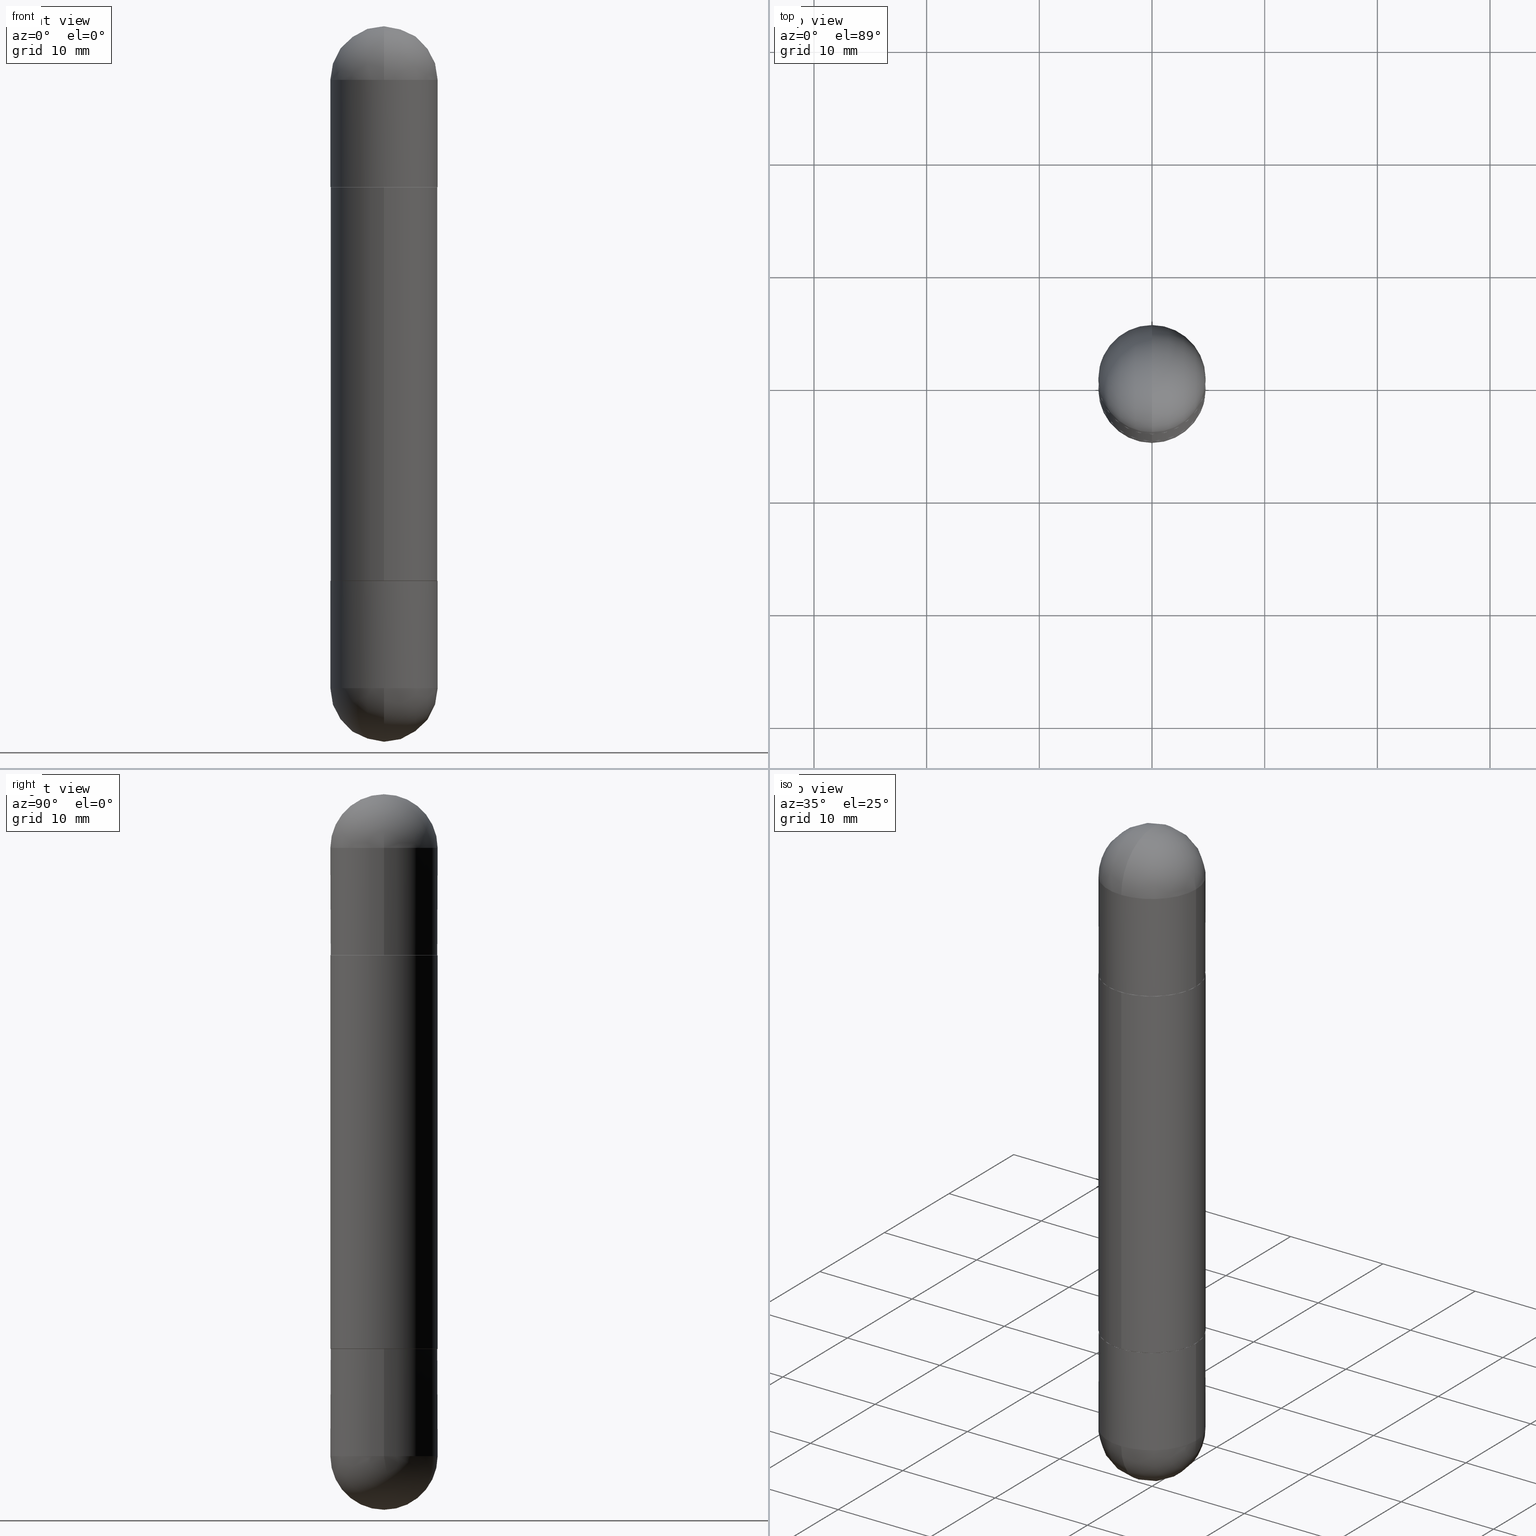
[diagram: canonical four-view strip — front | top / right | iso, engineering-drawing reading convention]
A machine part, canonical four-view strip (front | top / right | iso — engineering-drawing reading convention). The complete STEP part file that produces these views, byte-faithful:
ISO-10303-21;
HEADER;
FILE_DESCRIPTION (( 'STEP AP203' ),
    '1' );
FILE_NAME ('31576.STEP',
    '2024-03-01T12:43:05',
    ( '' ),
    ( '' ),
    'SwSTEP 2.0',
    'SolidWorks 2023',
    '' );
FILE_SCHEMA (( 'CONFIG_CONTROL_DESIGN' ));
ENDSEC;

DATA;
#1 = AXIS2_PLACEMENT_3D ( 'NONE', #22, #405, #390 ) ;
#2 = PERSON_AND_ORGANIZATION_ROLE ( 'classification_officer' ) ;
#3 = EDGE_CURVE ( 'NONE', #8, #341, #540, .T. ) ;
#4 = VERTEX_POINT ( 'NONE', #718 ) ;
#5 = PRODUCT_DEFINITION_FORMATION_WITH_SPECIFIED_SOURCE ( 'ANY', '', #185, .NOT_KNOWN. ) ;
#6 = CC_DESIGN_PERSON_AND_ORGANIZATION_ASSIGNMENT ( #668, #2, ( #112 ) ) ;
#7 = ADVANCED_FACE ( 'NONE', ( #776 ), #198, .T. ) ;
#8 = VERTEX_POINT ( 'NONE', #595 ) ;
#9 = EDGE_CURVE ( 'NONE', #522, #232, #355, .T. ) ;
#10 = CARTESIAN_POINT ( 'NONE',  ( 0.000000000000000000, 0.000000000000000000, 0.000000000000000000 ) ) ;
#11 = CARTESIAN_POINT ( 'NONE',  ( 4.738763353885146928E-29, -6.767285901939970201E-15, -1.937999999999999945 ) ) ;
#12 = CIRCLE ( 'NONE', #1, 0.1864999999999999714 ) ;
#13 = FACE_OUTER_BOUND ( 'NONE', #432, .T. ) ;
#14 = ORIENTED_EDGE ( 'NONE', *, *, #569, .T. ) ;
#15 = CARTESIAN_POINT ( 'NONE',  ( 1.286343374582210880E-15, 0.1874999999999935052, -0.5630000000000001670 ) ) ;
#16 = CARTESIAN_POINT ( 'NONE',  ( 5.324026836389243254E-29, -8.548232964214825368E-15, -0.1875000000000006661 ) ) ;
#17 = DIRECTION ( 'NONE',  ( 2.445468806185136597E-29, -3.491481338843145583E-15, 1.000000000000000000 ) ) ;
#18 = CARTESIAN_POINT ( 'NONE',  ( 4.738763353885146928E-29, -6.767285901939970201E-15, -1.937999999999999945 ) ) ;
#19 = CARTESIAN_POINT ( 'NONE',  ( 5.324026836389243254E-29, -8.548232964214825368E-15, -0.1875000000000006661 ) ) ;
#20 = DIRECTION ( 'NONE',  ( -2.445182329146102115E-29, 3.491891590268302774E-15, 1.000000000000000000 ) ) ;
#21 = DIRECTION ( 'NONE',  ( -2.445182329146102675E-29, 3.491891590268302774E-15, -1.000000000000000000 ) ) ;
#22 = CARTESIAN_POINT ( 'NONE',  ( 4.738763353885146928E-29, -6.767285901939970201E-15, -0.5620000000000007212 ) ) ;
#23 = CLOSED_SHELL ( 'NONE', ( #748, #320, #34, #316, #7, #68 ) ) ;
#24 = ADVANCED_FACE ( 'NONE', ( #274 ), #27, .T. ) ;
#25 = CARTESIAN_POINT ( 'NONE',  ( 4.739318546386794397E-29, -6.766490834678016045E-15, -1.937999999999999945 ) ) ;
#26 = CIRCLE ( 'NONE', #306, 0.1875000000000002220 ) ;
#27 = CYLINDRICAL_SURFACE ( 'NONE', #611, 0.1875000000000001110 ) ;
#28 = LINE ( 'NONE', #280, #564 ) ;
#29 = APPROVAL ( #755, 'UNSPECIFIED' ) ;
#30 = DIRECTION ( 'NONE',  ( -2.445182329146102675E-29, 3.491891590268302774E-15, -1.000000000000000000 ) ) ;
#31 = EDGE_LOOP ( 'NONE', ( #771, #378 ) ) ;
#32 = CARTESIAN_POINT ( 'NONE',  ( 1.309305502066231017E-15, 0.1874999999999918954, -0.1875000000000000278 ) ) ;
#33 = DIRECTION ( 'NONE',  ( -2.445468806185136597E-29, 3.491481338843145583E-15, 1.000000000000000000 ) ) ;
#34 = ADVANCED_FACE ( 'NONE', ( #727 ), #778, .F. ) ;
#35 = FACE_OUTER_BOUND ( 'NONE', #325, .T. ) ;
#36 = VERTEX_POINT ( 'NONE', #15 ) ;
#37 = LINE ( 'NONE', #413, #288 ) ;
#38 = CARTESIAN_POINT ( 'NONE',  ( 3.056477911432629185E-29, -4.364864487835379552E-15, -1.250000000000000222 ) ) ;
#39 = DIRECTION ( 'NONE',  ( 1.000000000000000000, -6.982962677686265922E-15, 4.876176775795935793E-29 ) ) ;
#40 = CIRCLE ( 'NONE', #230, 0.1875000000000000555 ) ;
#41 = APPROVAL_STATUS ( 'not_yet_approved' ) ;
#42 = VERTEX_POINT ( 'NONE', #207 ) ;
#43 = CIRCLE ( 'NONE', #395, 0.1875000000000003331 ) ;
#44 = DIRECTION ( 'NONE',  ( -2.445468806185136877E-29, 3.491481338843145188E-15, 1.000000000000000000 ) ) ;
#45 = FACE_OUTER_BOUND ( 'NONE', #504, .T. ) ;
#46 = DIRECTION ( 'NONE',  ( 2.445468806185136597E-29, -3.491481338843145583E-15, 1.000000000000000000 ) ) ;
#47 = ORIENTED_EDGE ( 'NONE', *, *, #534, .T. ) ;
#48 = DIRECTION ( 'NONE',  ( 1.000000000000000000, -6.982962677686266711E-15, 0.000000000000000000 ) ) ;
#49 = DIRECTION ( 'NONE',  ( 1.000000000000000000, -6.982962677686266711E-15, 0.000000000000000000 ) ) ;
#50 = EDGE_CURVE ( 'NONE', #610, #195, #644, .T. ) ;
#51 = ORIENTED_EDGE ( 'NONE', *, *, #698, .T. ) ;
#52 = CARTESIAN_POINT ( 'NONE',  ( 0.1875000000000000555, -8.729576217442571356E-15, -0.1875000000000006661 ) ) ;
#53 = MANIFOLD_SOLID_BREP ( 'Mirror4[3]', #62 ) ;
#54 = ORIENTED_EDGE ( 'NONE', *, *, #404, .F. ) ;
#55 = COORDINATED_UNIVERSAL_TIME_OFFSET ( 5, 0, .BEHIND. ) ;
#56 = MANIFOLD_SOLID_BREP ( 'Mirror4[1]', #23 ) ;
#57 = ORIENTED_EDGE ( 'NONE', *, *, #445, .T. ) ;
#58 = CALENDAR_DATE ( 2024, 1, 3 ) ;
#59 = VERTEX_POINT ( 'NONE', #337 ) ;
#60 = EDGE_LOOP ( 'NONE', ( #551, #705, #173, #128 ) ) ;
#61 = ADVANCED_FACE ( 'NONE', ( #646 ), #407, .T. ) ;
#62 = CLOSED_SHELL ( 'NONE', ( #159, #806, #385, #440, #624 ) ) ;
#63 = AXIS2_PLACEMENT_3D ( 'NONE', #486, #419, #167 ) ;
#64 = CARTESIAN_POINT ( 'NONE',  ( 0.000000000000000000, 0.000000000000000000, -2.500000000000000444 ) ) ;
#65 = CIRCLE ( 'NONE', #662, 0.1875000000000000555 ) ;
#66 = ORIENTED_EDGE ( 'NONE', *, *, #471, .F. ) ;
#67 = ADVANCED_FACE ( 'NONE', ( #144 ), #254, .T. ) ;
#68 = ADVANCED_FACE ( 'NONE', ( #396 ), #282, .T. ) ;
#69 = VERTEX_POINT ( 'NONE', #80 ) ;
#70 = CARTESIAN_POINT ( 'NONE',  ( 5.655146614303128380E-29, -8.074050596074775072E-15, -0.1875000000000006661 ) ) ;
#71 =( NAMED_UNIT ( * ) SI_UNIT ( $, .STERADIAN. ) SOLID_ANGLE_UNIT ( ) );
#72 = CARTESIAN_POINT ( 'NONE',  ( 4.736318171556000237E-29, -6.763794010349701520E-15, -0.5630000000000008331 ) ) ;
#73 = EDGE_LOOP ( 'NONE', ( #756, #754 ) ) ;
#74 = DIRECTION ( 'NONE',  ( -2.445468806185136597E-29, 3.491481338843145583E-15, 1.000000000000000000 ) ) ;
#75 = AXIS2_PLACEMENT_3D ( 'NONE', #671, #805, #619 ) ;
#76 = FACE_OUTER_BOUND ( 'NONE', #737, .T. ) ;
#77 = AXIS2_PLACEMENT_3D ( 'NONE', #639, #702, #212 ) ;
#78 = SPHERICAL_SURFACE ( 'NONE', #679, 0.1875000000000003331 ) ;
#79 =( GEOMETRIC_REPRESENTATION_CONTEXT ( 3 ) GLOBAL_UNCERTAINTY_ASSIGNED_CONTEXT ( ( #228 ) ) GLOBAL_UNIT_ASSIGNED_CONTEXT ( ( #199, #257, #71 ) ) REPRESENTATION_CONTEXT ( 'NONE', 'WORKASPACE' ) );
#80 = CARTESIAN_POINT ( 'NONE',  ( 5.790569421510013204E-29, -9.191404651505909607E-15, -2.500000000000000000 ) ) ;
#81 = CARTESIAN_POINT ( 'NONE',  ( -1.286343374582108525E-15, -0.1875000000000084932, -0.1875000000000013045 ) ) ;
#82 = CYLINDRICAL_SURFACE ( 'NONE', #508, 0.1875000000000001110 ) ;
#83 = ORIENTED_EDGE ( 'NONE', *, *, #95, .F. ) ;
#84 = CARTESIAN_POINT ( 'NONE',  ( 4.736318171556000237E-29, -6.763794010349701520E-15, -0.5630000000000008331 ) ) ;
#85 = EDGE_CURVE ( 'NONE', #169, #265, #656, .T. ) ;
#86 = CARTESIAN_POINT ( 'NONE',  ( 0.000000000000000000, 0.000000000000000000, 0.000000000000000000 ) ) ;
#87 = DIRECTION ( 'NONE',  ( 2.445468806185136597E-29, -3.491481338843145583E-15, 1.000000000000000000 ) ) ;
#88 = ORIENTED_EDGE ( 'NONE', *, *, #583, .T. ) ;
#89 = CC_DESIGN_PERSON_AND_ORGANIZATION_ASSIGNMENT ( #703, #321, ( #185 ) ) ;
#90 = DIRECTION ( 'NONE',  ( -6.982962677686266711E-15, -1.000000000000000000, -2.913971193241879189E-15 ) ) ;
#91 = DIRECTION ( 'NONE',  ( -1.000000000000000000, 6.982962677686265922E-15, 4.883557194083112340E-29 ) ) ;
#92 = VECTOR ( 'NONE', #548, 39.37007874015748143 ) ;
#93 = PLANE ( 'NONE',  #461 ) ;
#94 = DIMENSIONAL_EXPONENTS ( 1.000000000000000000, 0.000000000000000000, 0.000000000000000000, 0.000000000000000000, 0.000000000000000000, 0.000000000000000000, 0.000000000000000000 ) ;
#95 = EDGE_CURVE ( 'NONE', #59, #817, #789, .T. ) ;
#96 = CC_DESIGN_APPROVAL ( #213, ( #5 ) ) ;
#97 = DIRECTION ( 'NONE',  ( -1.000000000000000000, 0.000000000000000000, 0.000000000000000000 ) ) ;
#98 = LINE ( 'NONE', #607, #627 ) ;
#99 = FACE_OUTER_BOUND ( 'NONE', #468, .T. ) ;
#100 = APPROVAL_ROLE ( '' ) ;
#101 = VERTEX_POINT ( 'NONE', #32 ) ;
#102 = DIRECTION ( 'NONE',  ( 2.445468806185136597E-29, -3.491481338843145583E-15, 1.000000000000000000 ) ) ;
#103 = DIRECTION ( 'NONE',  ( -1.000000000000000000, 6.982962677686265922E-15, -4.876176775795935793E-29 ) ) ;
#104 = CARTESIAN_POINT ( 'NONE',  ( 5.655146614303128380E-29, -8.074050596074775072E-15, -0.1875000000000006661 ) ) ;
#105 = ORIENTED_EDGE ( 'NONE', *, *, #336, .T. ) ;
#106 = CARTESIAN_POINT ( 'NONE',  ( 4.738763353885146928E-29, -6.767285901939970201E-15, -1.937999999999999945 ) ) ;
#107 = DIRECTION ( 'NONE',  ( -1.000000000000000000, 0.000000000000000000, 0.000000000000000000 ) ) ;
#108 = DIRECTION ( 'NONE',  ( 1.000000000000000000, -6.982962677686266711E-15, 0.000000000000000000 ) ) ;
#109 = AXIS2_PLACEMENT_3D ( 'NONE', #552, #165, #365 ) ;
#110 = ORIENTED_EDGE ( 'NONE', *, *, #363, .F. ) ;
#111 = AXIS2_PLACEMENT_3D ( 'NONE', #330, #580, #457 ) ;
#112 = SECURITY_CLASSIFICATION ( '', '', #604 ) ;
#113 = LINE ( 'NONE', #238, #563 ) ;
#114 = DIRECTION ( 'NONE',  ( -2.445182329146102955E-29, 3.491891590268302774E-15, -1.000000000000000000 ) ) ;
#115 = APPROVAL_PERSON_ORGANIZATION ( #368, #213, #100 ) ;
#116 = CARTESIAN_POINT ( 'NONE',  ( -1.302322539388441071E-15, -0.1865000000000067437, -0.5620000000000013873 ) ) ;
#117 = VERTEX_POINT ( 'NONE', #536 ) ;
#118 = DIRECTION ( 'NONE',  ( 1.000000000000000000, -6.982962677686265922E-15, 4.883557194083112340E-29 ) ) ;
#119 = EDGE_CURVE ( 'NONE', #816, #36, #792, .T. ) ;
#120 = ORIENTED_EDGE ( 'NONE', *, *, #769, .T. ) ;
#121 = CALENDAR_DATE ( 2024, 1, 3 ) ;
#122 = EDGE_LOOP ( 'NONE', ( #258, #456, #139, #572, #491 ) ) ;
#123 = VECTOR ( 'NONE', #713, 39.37007874015748143 ) ;
#124 = CIRCLE ( 'NONE', #735, 0.1875000000000002220 ) ;
#125 = PERSON_AND_ORGANIZATION ( #815, #813 ) ;
#126 = EDGE_LOOP ( 'NONE', ( #269, #682 ) ) ;
#127 = EDGE_CURVE ( 'NONE', #496, #101, #497, .T. ) ;
#128 = ORIENTED_EDGE ( 'NONE', *, *, #442, .T. ) ;
#129 = APPROVAL_STATUS ( 'not_yet_approved' ) ;
#130 = EDGE_LOOP ( 'NONE', ( #319, #689, #547, #302 ) ) ;
#131 = EDGE_CURVE ( 'NONE', #265, #693, #690, .T. ) ;
#132 = VECTOR ( 'NONE', #600, 39.37007874015748143 ) ;
#133 = CLOSED_SHELL ( 'NONE', ( #810, #683, #376, #149, #241 ) ) ;
#134 = ORIENTED_EDGE ( 'NONE', *, *, #569, .F. ) ;
#135 = CARTESIAN_POINT ( 'NONE',  ( -1.302322539388441071E-15, -0.1865000000000067437, -1.937999999999999279 ) ) ;
#136 = DIRECTION ( 'NONE',  ( 1.000000000000000000, -6.982962677686265922E-15, 0.000000000000000000 ) ) ;
#137 = DIRECTION ( 'NONE',  ( 1.000000000000000000, -6.860497997771530774E-15, -4.840798879624142912E-29 ) ) ;
#138 = ORIENTED_EDGE ( 'NONE', *, *, #428, .T. ) ;
#139 = ORIENTED_EDGE ( 'NONE', *, *, #583, .F. ) ;
#140 = CARTESIAN_POINT ( 'NONE',  ( -0.1875000000000000555, 1.286343374582162562E-15, -2.500000000000000444 ) ) ;
#141 = DIRECTION ( 'NONE',  ( -2.445468806185136597E-29, 3.491481338843145583E-15, -1.000000000000000000 ) ) ;
#142 = DIRECTION ( 'NONE',  ( -2.445182329146102115E-29, 3.491891590268302774E-15, -1.000000000000000000 ) ) ;
#143 = VERTEX_POINT ( 'NONE', #606 ) ;
#144 = FACE_OUTER_BOUND ( 'NONE', #797, .T. ) ;
#145 = AXIS2_PLACEMENT_3D ( 'NONE', #589, #21, #90 ) ;
#146 = CARTESIAN_POINT ( 'NONE',  ( 4.736318171556000237E-29, -6.763794010349701520E-15, -0.5630000000000008331 ) ) ;
#147 = AXIS2_PLACEMENT_3D ( 'NONE', #146, #777, #208 ) ;
#148 = DIRECTION ( 'NONE',  ( 1.000000000000000000, -6.982962677686266711E-15, 0.000000000000000000 ) ) ;
#149 = ADVANCED_FACE ( 'NONE', ( #623 ), #234, .F. ) ;
#150 = DIRECTION ( 'NONE',  ( -2.445182329146102675E-29, 3.491891590268302774E-15, 1.000000000000000000 ) ) ;
#151 = FACE_OUTER_BOUND ( 'NONE', #358, .T. ) ;
#152 = CC_DESIGN_DATE_AND_TIME_ASSIGNMENT ( #562, #695, ( #298 ) ) ;
#153 = DIRECTION ( 'NONE',  ( 2.445182329146102675E-29, -3.491891590268302774E-15, 1.000000000000000000 ) ) ;
#154 = APPLICATION_CONTEXT ( 'configuration controlled 3d designs of mechanical parts and assemblies' ) ;
#155 = DIRECTION ( 'NONE',  ( -2.445182329146102675E-29, 3.491891590268302774E-15, -1.000000000000000000 ) ) ;
#156 = DIRECTION ( 'NONE',  ( 2.445468806185136597E-29, -3.491481338843145583E-15, 1.000000000000000000 ) ) ;
#157 = DIRECTION ( 'NONE',  ( 6.982962677686266711E-15, 1.000000000000000000, 3.460340791974727494E-15 ) ) ;
#158 = EDGE_CURVE ( 'NONE', #513, #559, #37, .T. ) ;
#159 = ADVANCED_FACE ( 'NONE', ( #742 ), #809, .T. ) ;
#160 = DIRECTION ( 'NONE',  ( 2.445182329146102675E-29, -3.491891590268302774E-15, 1.000000000000000000 ) ) ;
#161 = DIRECTION ( 'NONE',  ( 2.445468806185136597E-29, -3.491481338843145583E-15, 1.000000000000000000 ) ) ;
#162 = CIRCLE ( 'NONE', #523, 0.1875000000000000555 ) ;
#163 = ORIENTED_EDGE ( 'NONE', *, *, #527, .T. ) ;
#164 = CIRCLE ( 'NONE', #717, 0.1875000000000002220 ) ;
#165 = DIRECTION ( 'NONE',  ( 2.438088387897960049E-29, -3.491481338843145188E-15, 1.000000000000000000 ) ) ;
#166 = FACE_OUTER_BOUND ( 'NONE', #206, .T. ) ;
#167 = DIRECTION ( 'NONE',  ( 6.982962677686266711E-15, 1.000000000000000000, -2.913971193241875639E-15 ) ) ;
#168 = APPROVAL_ROLE ( '' ) ;
#169 = VERTEX_POINT ( 'NONE', #52 ) ;
#170 = DIRECTION ( 'NONE',  ( -2.445468806185136597E-29, 3.491481338843145583E-15, 1.000000000000000000 ) ) ;
#171 = FACE_OUTER_BOUND ( 'NONE', #188, .T. ) ;
#172 = CARTESIAN_POINT ( 'NONE',  ( 5.655146614303128380E-29, -8.074050596074775072E-15, -0.1875000000000006661 ) ) ;
#173 = ORIENTED_EDGE ( 'NONE', *, *, #780, .T. ) ;
#174 = CARTESIAN_POINT ( 'NONE',  ( 5.324026836389243254E-29, -8.548232964214825368E-15, -2.312500000000000000 ) ) ;
#175 = CARTESIAN_POINT ( 'NONE',  ( 0.1875000000000000278, -8.075796336744191053E-15, -0.5620000000000007212 ) ) ;
#176 = CARTESIAN_POINT ( 'NONE',  ( 4.739318546386794397E-29, -6.766490834678016045E-15, -0.5620000000000007212 ) ) ;
#177 = AXIS2_PLACEMENT_3D ( 'NONE', #612, #489, #293 ) ;
#178 = ORIENTED_EDGE ( 'NONE', *, *, #196, .T. ) ;
#179 = AXIS2_PLACEMENT_3D ( 'NONE', #263, #509, #271 ) ;
#180 = EDGE_CURVE ( 'NONE', #499, #8, #795, .T. ) ;
#181 = AXIS2_PLACEMENT_3D ( 'NONE', #225, #794, #680 ) ;
#182 = DIRECTION ( 'NONE',  ( -2.445468806185136597E-29, 3.491481338843145583E-15, -1.000000000000000000 ) ) ;
#183 = ORIENTED_EDGE ( 'NONE', *, *, #502, .T. ) ;
#184 = ORIENTED_EDGE ( 'NONE', *, *, #520, .T. ) ;
#185 = PRODUCT ( '31576', '31576', '', ( #450 ) ) ;
#186 = EDGE_CURVE ( 'NONE', #143, #631, #113, .T. ) ;
#187 = EDGE_LOOP ( 'NONE', ( #333, #731, #436, #88 ) ) ;
#188 = EDGE_LOOP ( 'NONE', ( #741, #517 ) ) ;
#189 = CIRCLE ( 'NONE', #434, 0.1875000000000000555 ) ;
#190 = AXIS2_PLACEMENT_3D ( 'NONE', #16, #779, #397 ) ;
#191 = AXIS2_PLACEMENT_3D ( 'NONE', #351, #608, #39 ) ;
#192 = COORDINATED_UNIVERSAL_TIME_OFFSET ( 5, 0, .BEHIND. ) ;
#193 = EDGE_LOOP ( 'NONE', ( #273, #251, #808, #256, #625 ) ) ;
#194 = CARTESIAN_POINT ( 'NONE',  ( 5.324026836389243254E-29, -8.548232964214825368E-15, -0.1875000000000006661 ) ) ;
#195 = VERTEX_POINT ( 'NONE', #429 ) ;
#196 = EDGE_CURVE ( 'NONE', #232, #412, #670, .T. ) ;
#197 = ORIENTED_EDGE ( 'NONE', *, *, #487, .F. ) ;
#198 = CONICAL_SURFACE ( 'NONE', #818, 0.1864999999999999714, 0.7853981633975336552 ) ;
#199 =( CONVERSION_BASED_UNIT ( 'INCH', #260 ) LENGTH_UNIT ( ) NAMED_UNIT ( #94 ) );
#200 = AXIS2_PLACEMENT_3D ( 'NONE', #104, #46, #357 ) ;
#201 = LINE ( 'NONE', #787, #558 ) ;
#202 = ORIENTED_EDGE ( 'NONE', *, *, #276, .T. ) ;
#203 = LINE ( 'NONE', #140, #123 ) ;
#204 = DIRECTION ( 'NONE',  ( 1.000000000000000000, -6.982962677686266711E-15, -4.883557194083113462E-29 ) ) ;
#205 = CARTESIAN_POINT ( 'NONE',  ( 5.655146614303128380E-29, -8.074050596074775072E-15, -0.1875000000000006661 ) ) ;
#206 = EDGE_LOOP ( 'NONE', ( #554, #707, #57, #14 ) ) ;
#207 = CARTESIAN_POINT ( 'NONE',  ( -1.309305502066136946E-15, -0.1875000000000044964, -1.250000000000000222 ) ) ;
#208 = DIRECTION ( 'NONE',  ( -6.982962677686265922E-15, -1.000000000000000000, -3.642463991552347014E-15 ) ) ;
#209 = CARTESIAN_POINT ( 'NONE',  ( 4.736318171556000237E-29, -6.763794010349701520E-15, -1.936999999999999833 ) ) ;
#210 = CARTESIAN_POINT ( 'NONE',  ( 5.655146614303128380E-29, -8.074050596074775072E-15, -2.312500000000000000 ) ) ;
#211 = AXIS2_PLACEMENT_3D ( 'NONE', #174, #118, #243 ) ;
#212 = DIRECTION ( 'NONE',  ( 6.982962677686266711E-15, 1.000000000000000000, 3.460340791974727494E-15 ) ) ;
#213 = APPROVAL ( #41, 'UNSPECIFIED' ) ;
#214 = AXIS2_PLACEMENT_3D ( 'NONE', #172, #740, #535 ) ;
#215 = EDGE_CURVE ( 'NONE', #69, #341, #342, .T. ) ;
#216 = CARTESIAN_POINT ( 'NONE',  ( -0.1875000000000000278, -6.133927340794232602E-15, -0.5620000000000007212 ) ) ;
#217 = LOCAL_TIME ( 7, 43, 5.000000000000000000, #307 ) ;
#218 = DIRECTION ( 'NONE',  ( -2.445182329146102675E-29, 3.491891590268302774E-15, -1.000000000000000000 ) ) ;
#219 = CARTESIAN_POINT ( 'NONE',  ( -1.332267629550134009E-15, -0.1875000000000084932, -2.312499999999999556 ) ) ;
#220 = EDGE_CURVE ( 'NONE', #559, #586, #730, .T. ) ;
#221 = DIRECTION ( 'NONE',  ( -6.982962677686265922E-15, -1.000000000000000000, -3.642463991552347014E-15 ) ) ;
#222 = ADVANCED_FACE ( 'NONE', ( #349 ), #768, .T. ) ;
#223 = CARTESIAN_POINT ( 'NONE',  ( 4.738763353885146928E-29, -6.767285901939970201E-15, -0.5620000000000007212 ) ) ;
#224 = CARTESIAN_POINT ( 'NONE',  ( -1.302322539388441071E-15, -0.1865000000000067437, -1.937999999999999279 ) ) ;
#225 = CARTESIAN_POINT ( 'NONE',  ( 5.324026836389243254E-29, -8.548232964214825368E-15, -2.312500000000000000 ) ) ;
#226 = CARTESIAN_POINT ( 'NONE',  ( 5.655146614303128380E-29, -8.074050596074775072E-15, -2.312500000000000000 ) ) ;
#227 = CARTESIAN_POINT ( 'NONE',  ( 1.309305502066222340E-15, 0.1874999999999932554, -1.938000000000000389 ) ) ;
#228 = UNCERTAINTY_MEASURE_WITH_UNIT (LENGTH_MEASURE( 1.000000000000000082E-05 ), #199, 'distance_accuracy_value', 'NONE');
#229 = AXIS2_PLACEMENT_3D ( 'NONE', #724, #155, #403 ) ;
#230 = AXIS2_PLACEMENT_3D ( 'NONE', #300, #666, #543 ) ;
#231 = CYLINDRICAL_SURFACE ( 'NONE', #191, 0.1875000000000000555 ) ;
#232 = VERTEX_POINT ( 'NONE', #799 ) ;
#233 = CIRCLE ( 'NONE', #694, 0.1875000000000001110 ) ;
#234 = PLANE ( 'NONE',  #109 ) ;
#235 = CARTESIAN_POINT ( 'NONE',  ( 1.309305502066231017E-15, 0.1874999999999918954, -2.312500000000000444 ) ) ;
#236 = DIRECTION ( 'NONE',  ( -6.982962677686265922E-15, -1.000000000000000000, -3.642463991552347014E-15 ) ) ;
#237 = VERTEX_POINT ( 'NONE', #480 ) ;
#238 = CARTESIAN_POINT ( 'NONE',  ( -0.1875000000000000555, 1.332267629550188243E-15, -9.223003294227950793E-30 ) ) ;
#239 = CARTESIAN_POINT ( 'NONE',  ( 1.286343374582209894E-15, 0.1874999999999957534, -1.250000000000000222 ) ) ;
#240 = DIRECTION ( 'NONE',  ( 1.000000000000000000, -6.860497997771530774E-15, -4.840798879624142912E-29 ) ) ;
#241 = ADVANCED_FACE ( 'NONE', ( #738 ), #417, .T. ) ;
#242 = ORIENTED_EDGE ( 'NONE', *, *, #471, .T. ) ;
#243 = DIRECTION ( 'NONE',  ( 6.982962677686265922E-15, 1.000000000000000000, 0.000000000000000000 ) ) ;
#244 = PRODUCT_DEFINITION_SHAPE ( 'NONE', 'NONE',  #298 ) ;
#245 = AXIS2_PLACEMENT_3D ( 'NONE', #665, #299, #684 ) ;
#246 = VERTEX_POINT ( 'NONE', #804 ) ;
#247 = CC_DESIGN_APPROVAL ( #29, ( #112 ) ) ;
#248 = ADVANCED_FACE ( 'NONE', ( #171 ), #661, .F. ) ;
#249 = ORIENTED_EDGE ( 'NONE', *, *, #706, .F. ) ;
#250 = SHAPE_DEFINITION_REPRESENTATION ( #244, #322 ) ;
#251 = ORIENTED_EDGE ( 'NONE', *, *, #467, .T. ) ;
#252 = PERSON_AND_ORGANIZATION ( #815, #813 ) ;
#253 = ORIENTED_EDGE ( 'NONE', *, *, #336, .F. ) ;
#254 = CONICAL_SURFACE ( 'NONE', #714, 0.1864999999999999714, 0.7853981633975336552 ) ;
#255 = CIRCLE ( 'NONE', #111, 0.1875000000000002220 ) ;
#256 = ORIENTED_EDGE ( 'NONE', *, *, #158, .F. ) ;
#257 =( NAMED_UNIT ( * ) PLANE_ANGLE_UNIT ( ) SI_UNIT ( $, .RADIAN. ) );
#258 = ORIENTED_EDGE ( 'NONE', *, *, #632, .F. ) ;
#259 = EDGE_CURVE ( 'NONE', #631, #700, #781, .T. ) ;
#260 = LENGTH_MEASURE_WITH_UNIT ( LENGTH_MEASURE( 0.02539999999999999897 ), #391 );
#261 = CIRCLE ( 'NONE', #369, 0.1875000000000001110 ) ;
#262 = CIRCLE ( 'NONE', #75, 0.1864999999999999714 ) ;
#263 = CARTESIAN_POINT ( 'NONE',  ( 1.309305502066222340E-15, 0.1874999999999932554, -0.5620000000000001661 ) ) ;
#264 = PLANE ( 'NONE',  #278 ) ;
#265 = VERTEX_POINT ( 'NONE', #175 ) ;
#266 = EDGE_LOOP ( 'NONE', ( #426, #138, #617, #66 ) ) ;
#267 = DIRECTION ( 'NONE',  ( 1.000000000000000000, -6.982962677686270655E-15, 0.000000000000000000 ) ) ;
#268 = DIRECTION ( 'NONE',  ( -6.982962677686265922E-15, -1.000000000000000000, -3.491891590268302774E-15 ) ) ;
#269 = ORIENTED_EDGE ( 'NONE', *, *, #131, .F. ) ;
#270 = DIRECTION ( 'NONE',  ( -6.982962677686265922E-15, -1.000000000000000000, 2.929595703661408850E-15 ) ) ;
#271 = DIRECTION ( 'NONE',  ( -1.000000000000000000, 6.982962677686265922E-15, 4.876176775795935793E-29 ) ) ;
#272 = CARTESIAN_POINT ( 'NONE',  ( 5.324026836389243254E-29, -8.548232964214825368E-15, -0.1875000000000006661 ) ) ;
#273 = ORIENTED_EDGE ( 'NONE', *, *, #675, .F. ) ;
#274 = FACE_OUTER_BOUND ( 'NONE', #439, .T. ) ;
#275 = FACE_OUTER_BOUND ( 'NONE', #266, .T. ) ;
#276 = EDGE_CURVE ( 'NONE', #341, #143, #189, .T. ) ;
#277 = DIRECTION ( 'NONE',  ( 1.000000000000000000, -6.982962677686270655E-15, 0.000000000000000000 ) ) ;
#278 = AXIS2_PLACEMENT_3D ( 'NONE', #511, #142, #268 ) ;
#279 = CARTESIAN_POINT ( 'NONE',  ( 0.1875000000000000555, -1.309305502066175205E-15, -2.500000000000000444 ) ) ;
#280 = CARTESIAN_POINT ( 'NONE',  ( 1.286343374582162760E-15, 0.1875000000000001110, -2.500000000000000000 ) ) ;
#281 = DIRECTION ( 'NONE',  ( -2.445468806185136877E-29, 3.491481338843145188E-15, -1.000000000000000000 ) ) ;
#282 = CYLINDRICAL_SURFACE ( 'NONE', #229, 0.1875000000000001110 ) ;
#283 = LINE ( 'NONE', #537, #691 ) ;
#284 = CARTESIAN_POINT ( 'NONE',  ( 5.324026836389243254E-29, -8.548232964214825368E-15, -0.1875000000000006661 ) ) ;
#285 = ORIENTED_EDGE ( 'NONE', *, *, #50, .F. ) ;
#286 = DIRECTION ( 'NONE',  ( -2.445182329146102675E-29, 3.491891590268302774E-15, 1.000000000000000000 ) ) ;
#287 = DIRECTION ( 'NONE',  ( -0.000000000000000000, -0.000000000000000000, -1.000000000000000000 ) ) ;
#288 = VECTOR ( 'NONE', #474, 39.37007874015748143 ) ;
#289 = AXIS2_PLACEMENT_3D ( 'NONE', #614, #294, #549 ) ;
#290 = CARTESIAN_POINT ( 'NONE',  ( 4.736318171556000237E-29, -6.763794010349701520E-15, -0.5630000000000008331 ) ) ;
#291 = EDGE_LOOP ( 'NONE', ( #364, #163, #638, #308 ) ) ;
#292 = CIRCLE ( 'NONE', #398, 0.1875000000000003331 ) ;
#293 = DIRECTION ( 'NONE',  ( 1.000000000000000000, -6.982962677686265922E-15, 0.000000000000000000 ) ) ;
#294 = DIRECTION ( 'NONE',  ( 2.445182329146102675E-29, -3.491891590268302774E-15, 1.000000000000000000 ) ) ;
#295 = EDGE_CURVE ( 'NONE', #785, #169, #162, .T. ) ;
#296 = DIRECTION ( 'NONE',  ( 6.860497997771530774E-15, 1.000000000000000000, 0.000000000000000000 ) ) ;
#297 = ORIENTED_EDGE ( 'NONE', *, *, #304, .T. ) ;
#298 = PRODUCT_DEFINITION ( 'UNKNOWN', '', #5, #685 ) ;
#299 = DIRECTION ( 'NONE',  ( -1.000000000000000000, 6.982962677686265922E-15, 4.883557194083112340E-29 ) ) ;
#300 = CARTESIAN_POINT ( 'NONE',  ( 5.655146614303128380E-29, -8.074050596074775072E-15, -2.312500000000000000 ) ) ;
#301 = EDGE_CURVE ( 'NONE', #610, #42, #98, .T. ) ;
#302 = ORIENTED_EDGE ( 'NONE', *, *, #180, .F. ) ;
#303 = EDGE_CURVE ( 'NONE', #4, #557, #262, .T. ) ;
#304 = EDGE_CURVE ( 'NONE', #4, #195, #346, .T. ) ;
#305 = ORIENTED_EDGE ( 'NONE', *, *, #598, .F. ) ;
#306 = AXIS2_PLACEMENT_3D ( 'NONE', #209, #591, #653 ) ;
#307 = COORDINATED_UNIVERSAL_TIME_OFFSET ( 5, 0, .BEHIND. ) ;
#308 = ORIENTED_EDGE ( 'NONE', *, *, #301, .F. ) ;
#309 = ORIENTED_EDGE ( 'NONE', *, *, #9, .T. ) ;
#310 = APPROVAL_DATE_TIME ( #503, #764 ) ;
#311 = ORIENTED_EDGE ( 'NONE', *, *, #588, .F. ) ;
#312 = AXIS2_PLACEMENT_3D ( 'NONE', #210, #74, #582 ) ;
#313 = AXIS2_PLACEMENT_3D ( 'NONE', #11, #526, #386 ) ;
#314 = CIRCLE ( 'NONE', #331, 0.1864999999999999714 ) ;
#315 = DIRECTION ( 'NONE',  ( 0.000000000000000000, 0.000000000000000000, 1.000000000000000000 ) ) ;
#316 = ADVANCED_FACE ( 'NONE', ( #793 ), #739, .F. ) ;
#317 = ORIENTED_EDGE ( 'NONE', *, *, #295, .F. ) ;
#318 = EDGE_CURVE ( 'NONE', #42, #374, #261, .T. ) ;
#319 = ORIENTED_EDGE ( 'NONE', *, *, #655, .F. ) ;
#320 = ADVANCED_FACE ( 'NONE', ( #45 ), #473, .T. ) ;
#321 = PERSON_AND_ORGANIZATION_ROLE ( 'design_owner' ) ;
#322 = ADVANCED_BREP_SHAPE_REPRESENTATION ( '31576', ( #603, #56, #53, #323, #326, #597 ), #79 ) ;
#323 = MANIFOLD_SOLID_BREP ( 'Mirror4[4]', #133 ) ;
#324 = DIRECTION ( 'NONE',  ( 2.445182329146102675E-29, -3.491891590268302774E-15, 1.000000000000000000 ) ) ;
#325 = EDGE_LOOP ( 'NONE', ( #202, #673, #249, #371, #722 ) ) ;
#326 = MANIFOLD_SOLID_BREP ( 'Combine1', #379 ) ;
#327 = AXIS2_PLACEMENT_3D ( 'NONE', #18, #150, #270 ) ;
#328 = CIRCLE ( 'NONE', #289, 0.1864999999999999714 ) ;
#329 = DIRECTION ( 'NONE',  ( -2.445182329146102675E-29, 3.491891590268302774E-15, -1.000000000000000000 ) ) ;
#330 = CARTESIAN_POINT ( 'NONE',  ( 4.736318171556000237E-29, -6.763794010349701520E-15, -1.936999999999999833 ) ) ;
#331 = AXIS2_PLACEMENT_3D ( 'NONE', #335, #153, #775 ) ;
#332 = CARTESIAN_POINT ( 'NONE',  ( 5.324026836389243254E-29, -8.548232964214825368E-15, -0.1875000000000006661 ) ) ;
#333 = ORIENTED_EDGE ( 'NONE', *, *, #505, .F. ) ;
#334 = CARTESIAN_POINT ( 'NONE',  ( 5.790569421510013204E-29, -9.191404651505909607E-15, -3.414809992080329023E-16 ) ) ;
#335 = CARTESIAN_POINT ( 'NONE',  ( 4.738763353885146928E-29, -6.767285901939970201E-15, -0.5620000000000007212 ) ) ;
#336 = EDGE_CURVE ( 'NONE', #143, #499, #40, .T. ) ;
#337 = CARTESIAN_POINT ( 'NONE',  ( -1.302322539388441071E-15, -0.1865000000000067437, -0.5620000000000013873 ) ) ;
#338 = CYLINDRICAL_SURFACE ( 'NONE', #475, 0.1875000000000000555 ) ;
#339 = CARTESIAN_POINT ( 'NONE',  ( 5.655146614303128380E-29, -8.074050596074775072E-15, -0.1875000000000006661 ) ) ;
#340 = ORIENTED_EDGE ( 'NONE', *, *, #598, .T. ) ;
#341 = VERTEX_POINT ( 'NONE', #235 ) ;
#342 = CIRCLE ( 'NONE', #211, 0.1875000000000003331 ) ;
#343 = DIRECTION ( 'NONE',  ( -6.982962677686265922E-15, -1.000000000000000000, 0.000000000000000000 ) ) ;
#344 = DIRECTION ( 'NONE',  ( -2.445468806185136597E-29, 3.491481338843145583E-15, 1.000000000000000000 ) ) ;
#345 = CARTESIAN_POINT ( 'NONE',  ( -1.302322539388441071E-15, -0.1865000000000067437, -0.5620000000000013873 ) ) ;
#346 = LINE ( 'NONE', #409, #394 ) ;
#347 = DIRECTION ( 'NONE',  ( -2.445182329146102955E-29, 3.491891590268302774E-15, -1.000000000000000000 ) ) ;
#348 = EDGE_LOOP ( 'NONE', ( #469, #285, #352, #393 ) ) ;
#349 = FACE_OUTER_BOUND ( 'NONE', #421, .T. ) ;
#350 = DIRECTION ( 'NONE',  ( 1.000000000000000000, -6.982962677686270655E-15, 0.000000000000000000 ) ) ;
#351 = CARTESIAN_POINT ( 'NONE',  ( 0.000000000000000000, 0.000000000000000000, 0.000000000000000000 ) ) ;
#352 = ORIENTED_EDGE ( 'NONE', *, *, #301, .T. ) ;
#353 = CARTESIAN_POINT ( 'NONE',  ( 1.325162202192633778E-15, 0.1864999999999932268, -1.938000000000000389 ) ) ;
#354 = DIRECTION ( 'NONE',  ( -6.982962677686265922E-15, -1.000000000000000000, -3.661994629576761260E-15 ) ) ;
#355 = CIRCLE ( 'NONE', #327, 0.1864999999999999714 ) ;
#356 = CIRCLE ( 'NONE', #798, 0.1875000000000000555 ) ;
#357 = DIRECTION ( 'NONE',  ( 1.000000000000000000, -6.982962677686270655E-15, 0.000000000000000000 ) ) ;
#358 = EDGE_LOOP ( 'NONE', ( #311, #443, #47, #472 ) ) ;
#359 = LOCAL_TIME ( 7, 43, 5.000000000000000000, #192 ) ;
#360 = DIRECTION ( 'NONE',  ( 1.000000000000000000, -6.982962677686270655E-15, 0.000000000000000000 ) ) ;
#361 = DIRECTION ( 'NONE',  ( 1.000000000000000000, -6.982962677686270655E-15, 0.000000000000000000 ) ) ;
#362 = CARTESIAN_POINT ( 'NONE',  ( 0.000000000000000000, 0.000000000000000000, -2.500000000000000444 ) ) ;
#363 = EDGE_CURVE ( 'NONE', #557, #610, #283, .T. ) ;
#364 = ORIENTED_EDGE ( 'NONE', *, *, #765, .F. ) ;
#365 = DIRECTION ( 'NONE',  ( -1.000000000000000000, 6.982962677686265922E-15, 4.876176775795935793E-29 ) ) ;
#366 = EDGE_CURVE ( 'NONE', #59, #816, #328, .T. ) ;
#367 = ORIENTED_EDGE ( 'NONE', *, *, #502, .F. ) ;
#368 = PERSON_AND_ORGANIZATION ( #815, #813 ) ;
#369 = AXIS2_PLACEMENT_3D ( 'NONE', #38, #287, #107 ) ;
#370 = CIRCLE ( 'NONE', #577, 0.1875000000000000555 ) ;
#371 = ORIENTED_EDGE ( 'NONE', *, *, #769, .F. ) ;
#372 = AXIS2_PLACEMENT_3D ( 'NONE', #410, #663, #585 ) ;
#373 = APPROVAL_DATE_TIME ( #692, #29 ) ;
#374 = VERTEX_POINT ( 'NONE', #239 ) ;
#375 = ORIENTED_EDGE ( 'NONE', *, *, #119, .T. ) ;
#376 = ADVANCED_FACE ( 'NONE', ( #166 ), #460, .T. ) ;
#377 = COORDINATED_UNIVERSAL_TIME_OFFSET ( 5, 0, .BEHIND. ) ;
#378 = ORIENTED_EDGE ( 'NONE', *, *, #303, .T. ) ;
#379 = CLOSED_SHELL ( 'NONE', ( #222, #24, #626, #788, #67, #61, #463, #649 ) ) ;
#380 = CC_DESIGN_DATE_AND_TIME_ASSIGNMENT ( #736, #609, ( #112 ) ) ;
#381 = ADVANCED_FACE ( 'NONE', ( #453 ), #338, .T. ) ;
#382 = AXIS2_PLACEMENT_3D ( 'NONE', #387, #17, #640 ) ;
#383 = DIRECTION ( 'NONE',  ( 6.982962677686266711E-15, 1.000000000000000000, 3.460340791974727494E-15 ) ) ;
#384 = ORIENTED_EDGE ( 'NONE', *, *, #655, .T. ) ;
#385 = ADVANCED_FACE ( 'NONE', ( #151 ), #515, .T. ) ;
#386 = DIRECTION ( 'NONE',  ( -6.982962677686265922E-15, -1.000000000000000000, 2.929595703661408850E-15 ) ) ;
#387 = CARTESIAN_POINT ( 'NONE',  ( 4.739318546386794397E-29, -6.766490834678016045E-15, -0.5620000000000007212 ) ) ;
#388 = ORIENTED_EDGE ( 'NONE', *, *, #180, .T. ) ;
#389 = DIRECTION ( 'NONE',  ( -2.445182329146102675E-29, 3.491891590268302774E-15, -1.000000000000000000 ) ) ;
#390 = DIRECTION ( 'NONE',  ( -6.982962677686265922E-15, -1.000000000000000000, -3.661994629576761260E-15 ) ) ;
#391 =( LENGTH_UNIT ( ) NAMED_UNIT ( * ) SI_UNIT ( $, .METRE. ) );
#392 = DIRECTION ( 'NONE',  ( -1.000000000000000000, 7.105427357601001070E-15, -4.926315508542082329E-29 ) ) ;
#393 = ORIENTED_EDGE ( 'NONE', *, *, #723, .F. ) ;
#394 = VECTOR ( 'NONE', #601, 39.37007874015748143 ) ;
#395 = AXIS2_PLACEMENT_3D ( 'NONE', #19, #91, #343 ) ;
#396 = FACE_OUTER_BOUND ( 'NONE', #348, .T. ) ;
#397 = DIRECTION ( 'NONE',  ( 6.982962677686266711E-15, 1.000000000000000000, 3.460340791974727494E-15 ) ) ;
#398 = AXIS2_PLACEMENT_3D ( 'NONE', #332, #137, #648 ) ;
#399 = DIRECTION ( 'NONE',  ( -0.000000000000000000, -0.000000000000000000, -1.000000000000000000 ) ) ;
#400 = DIRECTION ( 'NONE',  ( -6.982962677686266711E-15, -1.000000000000000000, -2.913971193241879189E-15 ) ) ;
#401 = CARTESIAN_POINT ( 'NONE',  ( 1.286343374582193722E-15, 0.1874999999999934497, -1.937000000000000499 ) ) ;
#402 = CARTESIAN_POINT ( 'NONE',  ( 0.1875000000000000555, -1.309305502066175205E-15, 9.142831454617382414E-30 ) ) ;
#403 = DIRECTION ( 'NONE',  ( -6.982962677686266711E-15, -1.000000000000000000, -2.913971193241879189E-15 ) ) ;
#404 = EDGE_CURVE ( 'NONE', #522, #246, #719, .T. ) ;
#405 = DIRECTION ( 'NONE',  ( 2.445182329146102675E-29, -3.491891590268302774E-15, 1.000000000000000000 ) ) ;
#406 = CARTESIAN_POINT ( 'NONE',  ( 5.324026836389243254E-29, -8.548232964214825368E-15, -2.312500000000000000 ) ) ;
#407 = CYLINDRICAL_SURFACE ( 'NONE', #145, 0.1875000000000001110 ) ;
#408 = AXIS2_PLACEMENT_3D ( 'NONE', #106, #286, #747 ) ;
#409 = CARTESIAN_POINT ( 'NONE',  ( 1.279482876584437493E-15, 0.1864999999999932268, -0.5620000000000000551 ) ) ;
#410 = CARTESIAN_POINT ( 'NONE',  ( 4.738763353885146928E-29, -6.767285901939970201E-15, -0.5620000000000007212 ) ) ;
#411 = CIRCLE ( 'NONE', #200, 0.1875000000000000555 ) ;
#412 = VERTEX_POINT ( 'NONE', #401 ) ;
#413 = CARTESIAN_POINT ( 'NONE',  ( 0.1875000000000000555, -1.309305502066175205E-15, -2.500000000000000444 ) ) ;
#414 = CARTESIAN_POINT ( 'NONE',  ( 5.655146614303128380E-29, -8.074050596074775072E-15, -0.1875000000000006661 ) ) ;
#415 = DIRECTION ( 'NONE',  ( 2.445468806185136597E-29, -3.491481338843145583E-15, 1.000000000000000000 ) ) ;
#416 = EDGE_LOOP ( 'NONE', ( #803, #375, #340, #83 ) ) ;
#417 = CYLINDRICAL_SURFACE ( 'NONE', #177, 0.1875000000000000555 ) ;
#418 = CARTESIAN_POINT ( 'NONE',  ( 5.655146614303128380E-29, -8.074050596074775072E-15, -2.312500000000000000 ) ) ;
#419 = DIRECTION ( 'NONE',  ( -1.000000000000000000, 6.982962677686266711E-15, -4.883557194083113462E-29 ) ) ;
#420 = EDGE_LOOP ( 'NONE', ( #766, #384, #253, #628 ) ) ;
#421 = EDGE_LOOP ( 'NONE', ( #309, #178, #751, #54 ) ) ;
#422 = DIRECTION ( 'NONE',  ( 2.445468806185136597E-29, -3.491481338843145583E-15, 1.000000000000000000 ) ) ;
#423 = CARTESIAN_POINT ( 'NONE',  ( 4.738763353885146928E-29, -6.767285901939970201E-15, -0.5620000000000007212 ) ) ;
#424 = CIRCLE ( 'NONE', #214, 0.1875000000000000555 ) ;
#425 = CARTESIAN_POINT ( 'NONE',  ( 5.655146614303128380E-29, -8.074050596074775072E-15, -0.1875000000000006661 ) ) ;
#426 = ORIENTED_EDGE ( 'NONE', *, *, #196, .F. ) ;
#427 = VECTOR ( 'NONE', #711, 39.37007874015748143 ) ;
#428 = EDGE_CURVE ( 'NONE', #232, #522, #524, .T. ) ;
#429 = CARTESIAN_POINT ( 'NONE',  ( 1.286343374582210880E-15, 0.1874999999999935052, -0.5630000000000001670 ) ) ;
#430 = EDGE_LOOP ( 'NONE', ( #570, #641, #814, #605 ) ) ;
#431 = DATE_AND_TIME ( #493, #448 ) ;
#432 = EDGE_LOOP ( 'NONE', ( #479, #697 ) ) ;
#433 = PERSON_AND_ORGANIZATION_ROLE ( 'creator' ) ;
#434 = AXIS2_PLACEMENT_3D ( 'NONE', #418, #728, #361 ) ;
#435 = CIRCLE ( 'NONE', #147, 0.1875000000000002220 ) ;
#436 = ORIENTED_EDGE ( 'NONE', *, *, #295, .T. ) ;
#437 = CIRCLE ( 'NONE', #528, 0.1875000000000000278 ) ;
#438 = PERSON_AND_ORGANIZATION_ROLE ( 'design_supplier' ) ;
#439 = EDGE_LOOP ( 'NONE', ( #305, #184, #242, #367 ) ) ;
#440 = ADVANCED_FACE ( 'NONE', ( #76 ), #652, .F. ) ;
#441 = CC_DESIGN_PERSON_AND_ORGANIZATION_ASSIGNMENT ( #495, #433, ( #298 ) ) ;
#442 = EDGE_CURVE ( 'NONE', #513, #101, #356, .T. ) ;
#443 = ORIENTED_EDGE ( 'NONE', *, *, #127, .T. ) ;
#444 = CYLINDRICAL_SURFACE ( 'NONE', #616, 0.1875000000000000555 ) ;
#445 = EDGE_CURVE ( 'NONE', #117, #642, #498, .T. ) ;
#446 = ORIENTED_EDGE ( 'NONE', *, *, #520, .F. ) ;
#447 = EDGE_CURVE ( 'NONE', #557, #4, #12, .T. ) ;
#448 = LOCAL_TIME ( 7, 43, 5.000000000000000000, #55 ) ;
#449 = CC_DESIGN_SECURITY_CLASSIFICATION ( #112, ( #5 ) ) ;
#450 = MECHANICAL_CONTEXT ( 'NONE', #154, 'mechanical' ) ;
#451 = DIRECTION ( 'NONE',  ( -6.982962677686266711E-15, -1.000000000000000000, -2.913971193241879189E-15 ) ) ;
#452 = CARTESIAN_POINT ( 'NONE',  ( 1.279482876584437493E-15, 0.1864999999999932268, -0.5620000000000000551 ) ) ;
#453 = FACE_OUTER_BOUND ( 'NONE', #512, .T. ) ;
#454 = CARTESIAN_POINT ( 'NONE',  ( 1.282913125583324384E-15, 0.1864999999999932268, -0.5620000000000000551 ) ) ;
#455 = CARTESIAN_POINT ( 'NONE',  ( -0.1875000000000000278, -6.088003085826206921E-15, -1.937999999999999945 ) ) ;
#456 = ORIENTED_EDGE ( 'NONE', *, *, #445, .F. ) ;
#457 = DIRECTION ( 'NONE',  ( -6.982962677686265922E-15, -1.000000000000000000, 2.913971193241877216E-15 ) ) ;
#458 = DIRECTION ( 'NONE',  ( 1.000000000000000000, -6.982962677686266711E-15, -4.883557194083113462E-29 ) ) ;
#459 = ORIENTED_EDGE ( 'NONE', *, *, #765, .T. ) ;
#460 = SPHERICAL_SURFACE ( 'NONE', #77, 0.1875000000000003331 ) ;
#461 = AXIS2_PLACEMENT_3D ( 'NONE', #704, #20, #466 ) ;
#462 = FACE_OUTER_BOUND ( 'NONE', #291, .T. ) ;
#463 = ADVANCED_FACE ( 'NONE', ( #275 ), #783, .T. ) ;
#464 = DIRECTION ( 'NONE',  ( -6.982962677686265922E-15, -1.000000000000000000, -3.661994629576761260E-15 ) ) ;
#465 = CARTESIAN_POINT ( 'NONE',  ( -1.309305502066175797E-15, -0.1875000000000001110, -2.500000000000001332 ) ) ;
#466 = DIRECTION ( 'NONE',  ( -6.982962677686265922E-15, -1.000000000000000000, 3.491891590268302774E-15 ) ) ;
#467 = EDGE_CURVE ( 'NONE', #664, #586, #203, .T. ) ;
#468 = EDGE_LOOP ( 'NONE', ( #592, #636, #745, #483, #696 ) ) ;
#469 = ORIENTED_EDGE ( 'NONE', *, *, #527, .F. ) ;
#470 = DIRECTION ( 'NONE',  ( 1.000000000000000000, -6.982962677686265922E-15, 0.000000000000000000 ) ) ;
#471 = EDGE_CURVE ( 'NONE', #412, #246, #255, .T. ) ;
#472 = ORIENTED_EDGE ( 'NONE', *, *, #675, .T. ) ;
#473 = CONICAL_SURFACE ( 'NONE', #542, 0.1864999999999999714, 0.7853981633975336552 ) ;
#474 = DIRECTION ( 'NONE',  ( -2.445468806185136877E-29, 3.491481338843145188E-15, -1.000000000000000000 ) ) ;
#475 = AXIS2_PLACEMENT_3D ( 'NONE', #86, #573, #643 ) ;
#476 = DIRECTION ( 'NONE',  ( -2.445182329146102115E-29, 3.491891590268302774E-15, -1.000000000000000000 ) ) ;
#477 = FACE_OUTER_BOUND ( 'NONE', #420, .T. ) ;
#478 = CIRCLE ( 'NONE', #492, 0.1875000000000000278 ) ;
#479 = ORIENTED_EDGE ( 'NONE', *, *, #366, .T. ) ;
#480 = CARTESIAN_POINT ( 'NONE',  ( 5.790569421510013204E-29, -9.191404651505909607E-15, -3.414809992080329023E-16 ) ) ;
#481 = CARTESIAN_POINT ( 'NONE',  ( 4.739318546386794397E-29, -6.766490834678016045E-15, -1.937999999999999945 ) ) ;
#482 = CARTESIAN_POINT ( 'NONE',  ( -1.309305502066128860E-15, -0.1875000000000069389, -0.5630000000000014992 ) ) ;
#483 = ORIENTED_EDGE ( 'NONE', *, *, #158, .T. ) ;
#484 = DIRECTION ( 'NONE',  ( 1.000000000000000000, -6.982962677686266711E-15, 0.000000000000000000 ) ) ;
#485 = DIRECTION ( 'NONE',  ( 2.438088387897960049E-29, -3.491481338843145188E-15, -1.000000000000000000 ) ) ;
#486 = CARTESIAN_POINT ( 'NONE',  ( 5.324026836389243254E-29, -8.548232964214825368E-15, -2.312500000000000000 ) ) ;
#487 = EDGE_CURVE ( 'NONE', #817, #36, #435, .T. ) ;
#488 = VERTEX_POINT ( 'NONE', #81 ) ;
#489 = DIRECTION ( 'NONE',  ( -2.445468806185136597E-29, 3.491481338843145583E-15, -1.000000000000000000 ) ) ;
#490 = AXIS2_PLACEMENT_3D ( 'NONE', #651, #579, #97 ) ;
#491 = ORIENTED_EDGE ( 'NONE', *, *, #131, .T. ) ;
#492 = AXIS2_PLACEMENT_3D ( 'NONE', #25, #344, #148 ) ;
#493 = CALENDAR_DATE ( 2024, 1, 3 ) ;
#494 = ORIENTED_EDGE ( 'NONE', *, *, #85, .F. ) ;
#495 = PERSON_AND_ORGANIZATION ( #815, #813 ) ;
#496 = VERTEX_POINT ( 'NONE', #334 ) ;
#497 = CIRCLE ( 'NONE', #245, 0.1875000000000003331 ) ;
#498 = CIRCLE ( 'NONE', #613, 0.1875000000000000555 ) ;
#499 = VERTEX_POINT ( 'NONE', #219 ) ;
#500 = CIRCLE ( 'NONE', #637, 0.1875000000000003331 ) ;
#501 = EDGE_LOOP ( 'NONE', ( #621, #660 ) ) ;
#502 = EDGE_CURVE ( 'NONE', #817, #246, #584, .T. ) ;
#503 = DATE_AND_TIME ( #633, #567 ) ;
#504 = EDGE_LOOP ( 'NONE', ( #762, #297, #459, #110 ) ) ;
#505 = EDGE_CURVE ( 'NONE', #237, #117, #43, .T. ) ;
#506 = DIRECTION ( 'NONE',  ( 1.000000000000000000, 0.000000000000000000, 0.000000000000000000 ) ) ;
#507 = AXIS2_PLACEMENT_3D ( 'NONE', #227, #485, #103 ) ;
#508 = AXIS2_PLACEMENT_3D ( 'NONE', #720, #30, #451 ) ;
#509 = DIRECTION ( 'NONE',  ( 2.438088387897960049E-29, -3.491481338843145188E-15, 1.000000000000000000 ) ) ;
#510 = SPHERICAL_SURFACE ( 'NONE', #629, 0.1875000000000003331 ) ;
#511 = CARTESIAN_POINT ( 'NONE',  ( 4.738763353885146928E-29, -6.767285901939970201E-15, -0.5620000000000007212 ) ) ;
#512 = EDGE_LOOP ( 'NONE', ( #650, #105, #388, #120, #531 ) ) ;
#513 = VERTEX_POINT ( 'NONE', #596 ) ;
#514 = DIRECTION ( 'NONE',  ( -6.982962677686265922E-15, -1.000000000000000000, -3.642463991552347014E-15 ) ) ;
#515 = SPHERICAL_SURFACE ( 'NONE', #190, 0.1875000000000003331 ) ;
#516 = CARTESIAN_POINT ( 'NONE',  ( -0.1875000000000000555, -6.133927340794233391E-15, -0.1875000000000006661 ) ) ;
#517 = ORIENTED_EDGE ( 'NONE', *, *, #259, .T. ) ;
#518 = CARTESIAN_POINT ( 'NONE',  ( 0.000000000000000000, 0.000000000000000000, -2.500000000000000444 ) ) ;
#519 = DIRECTION ( 'NONE',  ( -4.937700262164969294E-15, -0.7071067811866054154, 0.7071067811864896191 ) ) ;
#520 = EDGE_CURVE ( 'NONE', #36, #412, #28, .T. ) ;
#521 = CARTESIAN_POINT ( 'NONE',  ( 0.1875000000000000278, -8.075796336744191053E-15, -1.937999999999999945 ) ) ;
#522 = VERTEX_POINT ( 'NONE', #224 ) ;
#523 = AXIS2_PLACEMENT_3D ( 'NONE', #414, #161, #350 ) ;
#524 = CIRCLE ( 'NONE', #313, 0.1864999999999999714 ) ;
#525 = CARTESIAN_POINT ( 'NONE',  ( 4.738763353885146928E-29, -6.767285901939970201E-15, -0.5620000000000007212 ) ) ;
#526 = DIRECTION ( 'NONE',  ( -2.445182329146102675E-29, 3.491891590268302774E-15, 1.000000000000000000 ) ) ;
#527 = EDGE_CURVE ( 'NONE', #195, #374, #790, .T. ) ;
#528 = AXIS2_PLACEMENT_3D ( 'NONE', #176, #672, #108 ) ;
#529 = APPROVAL_PERSON_ORGANIZATION ( #560, #29, #168 ) ;
#530 = CARTESIAN_POINT ( 'NONE',  ( -1.286343374582108525E-15, -0.1875000000000084932, -0.1875000000000013045 ) ) ;
#531 = ORIENTED_EDGE ( 'NONE', *, *, #259, .F. ) ;
#532 = DIRECTION ( 'NONE',  ( -2.445468806185136877E-29, 3.491481338843145188E-15, -1.000000000000000000 ) ) ;
#533 = DIRECTION ( 'NONE',  ( -2.445182329146102955E-29, 3.491891590268302774E-15, -1.000000000000000000 ) ) ;
#534 = EDGE_CURVE ( 'NONE', #101, #664, #424, .T. ) ;
#535 = DIRECTION ( 'NONE',  ( 1.000000000000000000, -6.982962677686270655E-15, 0.000000000000000000 ) ) ;
#536 = CARTESIAN_POINT ( 'NONE',  ( 1.309305502066231017E-15, 0.1874999999999918954, -0.1875000000000000278 ) ) ;
#537 = CARTESIAN_POINT ( 'NONE',  ( -1.302322539388441071E-15, -0.1865000000000067437, -0.5620000000000013873 ) ) ;
#538 = FACE_OUTER_BOUND ( 'NONE', #416, .T. ) ;
#539 = ORIENTED_EDGE ( 'NONE', *, *, #632, .T. ) ;
#540 = CIRCLE ( 'NONE', #312, 0.1875000000000000555 ) ;
#541 = CARTESIAN_POINT ( 'NONE',  ( 4.739318546386794397E-29, -6.766490834678016045E-15, -0.5620000000000007212 ) ) ;
#542 = AXIS2_PLACEMENT_3D ( 'NONE', #678, #800, #354 ) ;
#543 = DIRECTION ( 'NONE',  ( 1.000000000000000000, -6.982962677686270655E-15, 0.000000000000000000 ) ) ;
#544 = DIRECTION ( 'NONE',  ( 2.445182329146102675E-29, -3.491891590268302774E-15, 1.000000000000000000 ) ) ;
#545 = CC_DESIGN_APPROVAL ( #764, ( #298 ) ) ;
#546 = CALENDAR_DATE ( 2024, 1, 3 ) ;
#547 = ORIENTED_EDGE ( 'NONE', *, *, #3, .F. ) ;
#548 = DIRECTION ( 'NONE',  ( 5.024295867788490741E-15, 0.7071067811866103003, 0.7071067811864847341 ) ) ;
#549 = DIRECTION ( 'NONE',  ( -6.982962677686265922E-15, -1.000000000000000000, -3.661994629576761260E-15 ) ) ;
#550 = CYLINDRICAL_SURFACE ( 'NONE', #760, 0.1875000000000000555 ) ;
#551 = ORIENTED_EDGE ( 'NONE', *, *, #127, .F. ) ;
#552 = CARTESIAN_POINT ( 'NONE',  ( 1.309305502066222340E-15, 0.1874999999999932554, -0.5620000000000001661 ) ) ;
#553 = ADVANCED_FACE ( 'NONE', ( #477 ), #602, .T. ) ;
#554 = ORIENTED_EDGE ( 'NONE', *, *, #686, .F. ) ;
#555 = CLOSED_SHELL ( 'NONE', ( #587, #553, #620, #248, #381 ) ) ;
#556 = CC_DESIGN_PERSON_AND_ORGANIZATION_ASSIGNMENT ( #125, #753, ( #5 ) ) ;
#557 = VERTEX_POINT ( 'NONE', #116 ) ;
#558 = VECTOR ( 'NONE', #281, 39.37007874015748143 ) ;
#559 = VERTEX_POINT ( 'NONE', #744 ) ;
#560 = PERSON_AND_ORGANIZATION ( #815, #813 ) ;
#561 = EDGE_LOOP ( 'NONE', ( #134, #539, #654, #494, #317 ) ) ;
#562 = DATE_AND_TIME ( #121, #359 ) ;
#563 = VECTOR ( 'NONE', #44, 39.37007874015748143 ) ;
#564 = VECTOR ( 'NONE', #533, 39.37007874015748143 ) ;
#565 = ORIENTED_EDGE ( 'NONE', *, *, #95, .T. ) ;
#566 = CIRCLE ( 'NONE', #382, 0.1875000000000000278 ) ;
#567 = LOCAL_TIME ( 7, 43, 5.000000000000000000, #377 ) ;
#568 = APPROVAL_ROLE ( '' ) ;
#569 = EDGE_CURVE ( 'NONE', #642, #785, #370, .T. ) ;
#570 = ORIENTED_EDGE ( 'NONE', *, *, #304, .F. ) ;
#571 = FACE_OUTER_BOUND ( 'NONE', #561, .T. ) ;
#572 = ORIENTED_EDGE ( 'NONE', *, *, #85, .T. ) ;
#573 = DIRECTION ( 'NONE',  ( -2.445468806185136597E-29, 3.491481338843145583E-15, 1.000000000000000000 ) ) ;
#574 = APPLICATION_PROTOCOL_DEFINITION ( 'international standard', 'config_control_design', 1994, #721 ) ;
#575 = LINE ( 'NONE', #402, #427 ) ;
#576 = ORIENTED_EDGE ( 'NONE', *, *, #594, .F. ) ;
#577 = AXIS2_PLACEMENT_3D ( 'NONE', #425, #415, #667 ) ;
#578 = CIRCLE ( 'NONE', #772, 0.1875000000000003331 ) ;
#579 = DIRECTION ( 'NONE',  ( 0.000000000000000000, 0.000000000000000000, 1.000000000000000000 ) ) ;
#580 = DIRECTION ( 'NONE',  ( -2.445182329146102675E-29, 3.491891590268302774E-15, 1.000000000000000000 ) ) ;
#581 = CARTESIAN_POINT ( 'NONE',  ( -0.1875000000000000555, -6.133927340794233391E-15, -0.1875000000000006661 ) ) ;
#582 = DIRECTION ( 'NONE',  ( 1.000000000000000000, -6.982962677686270655E-15, 0.000000000000000000 ) ) ;
#583 = EDGE_CURVE ( 'NONE', #169, #117, #411, .T. ) ;
#584 = LINE ( 'NONE', #465, #677 ) ;
#585 = DIRECTION ( 'NONE',  ( -6.982962677686265922E-15, -1.000000000000000000, -3.661994629576761260E-15 ) ) ;
#586 = VERTEX_POINT ( 'NONE', #802 ) ;
#587 = ADVANCED_FACE ( 'NONE', ( #35 ), #231, .T. ) ;
#588 = EDGE_CURVE ( 'NONE', #496, #488, #500, .T. ) ;
#589 = CARTESIAN_POINT ( 'NONE',  ( 0.000000000000000000, 0.000000000000000000, -2.500000000000000444 ) ) ;
#590 = DIRECTION ( 'NONE',  ( 2.445468806185136597E-29, -3.491481338843145583E-15, 1.000000000000000000 ) ) ;
#591 = DIRECTION ( 'NONE',  ( -2.445182329146102675E-29, 3.491891590268302774E-15, 1.000000000000000000 ) ) ;
#592 = ORIENTED_EDGE ( 'NONE', *, *, #467, .F. ) ;
#593 = VECTOR ( 'NONE', #708, 39.37007874015748143 ) ;
#594 = EDGE_CURVE ( 'NONE', #586, #559, #437, .T. ) ;
#595 = CARTESIAN_POINT ( 'NONE',  ( 0.1875000000000000555, -8.729576217442571356E-15, -2.312500000000000000 ) ) ;
#596 = CARTESIAN_POINT ( 'NONE',  ( 0.1875000000000000555, -8.729576217442571356E-15, -0.1875000000000006661 ) ) ;
#597 = AXIS2_PLACEMENT_3D ( 'NONE', #10, #315, #506 ) ;
#598 = EDGE_CURVE ( 'NONE', #36, #817, #124, .T. ) ;
#599 = DIRECTION ( 'NONE',  ( 1.000000000000000000, -6.982962677686270655E-15, 0.000000000000000000 ) ) ;
#600 = DIRECTION ( 'NONE',  ( -4.937700262164969294E-15, -0.7071067811866054154, -0.7071067811864896191 ) ) ;
#601 = DIRECTION ( 'NONE',  ( 4.851104656541377638E-15, 0.7071067811866103003, -0.7071067811864847341 ) ) ;
#602 = SPHERICAL_SURFACE ( 'NONE', #63, 0.1875000000000003331 ) ;
#603 = MANIFOLD_SOLID_BREP ( 'Body-Move/Copy2[1]', #555 ) ;
#604 = SECURITY_CLASSIFICATION_LEVEL ( 'unclassified' ) ;
#605 = ORIENTED_EDGE ( 'NONE', *, *, #50, .T. ) ;
#606 = CARTESIAN_POINT ( 'NONE',  ( -0.1875000000000000555, -6.088003085826207710E-15, -2.312500000000000000 ) ) ;
#607 = CARTESIAN_POINT ( 'NONE',  ( -1.309305502066175797E-15, -0.1875000000000001110, -2.500000000000001332 ) ) ;
#608 = DIRECTION ( 'NONE',  ( -2.445468806185136597E-29, 3.491481338843145583E-15, 1.000000000000000000 ) ) ;
#609 = DATE_TIME_ROLE ( 'classification_date' ) ;
#610 = VERTEX_POINT ( 'NONE', #482 ) ;
#611 = AXIS2_PLACEMENT_3D ( 'NONE', #518, #389, #400 ) ;
#612 = CARTESIAN_POINT ( 'NONE',  ( 0.000000000000000000, 0.000000000000000000, -2.500000000000000444 ) ) ;
#613 = AXIS2_PLACEMENT_3D ( 'NONE', #70, #590, #725 ) ;
#614 = CARTESIAN_POINT ( 'NONE',  ( 4.738763353885146928E-29, -6.767285901939970201E-15, -0.5620000000000007212 ) ) ;
#615 = FACE_OUTER_BOUND ( 'NONE', #130, .T. ) ;
#616 = AXIS2_PLACEMENT_3D ( 'NONE', #64, #141, #136 ) ;
#617 = ORIENTED_EDGE ( 'NONE', *, *, #404, .T. ) ;
#618 = CARTESIAN_POINT ( 'NONE',  ( 0.000000000000000000, 0.000000000000000000, -2.500000000000000444 ) ) ;
#619 = DIRECTION ( 'NONE',  ( -6.982962677686265922E-15, -1.000000000000000000, -3.661994629576761260E-15 ) ) ;
#620 = ADVANCED_FACE ( 'NONE', ( #615 ), #807, .T. ) ;
#621 = ORIENTED_EDGE ( 'NONE', *, *, #9, .F. ) ;
#622 = CC_DESIGN_PERSON_AND_ORGANIZATION_ASSIGNMENT ( #252, #438, ( #5 ) ) ;
#623 = FACE_OUTER_BOUND ( 'NONE', #126, .T. ) ;
#624 = ADVANCED_FACE ( 'NONE', ( #99 ), #550, .T. ) ;
#625 = ORIENTED_EDGE ( 'NONE', *, *, #780, .F. ) ;
#626 = ADVANCED_FACE ( 'NONE', ( #538 ), #749, .T. ) ;
#627 = VECTOR ( 'NONE', #114, 39.37007874015748143 ) ;
#628 = ORIENTED_EDGE ( 'NONE', *, *, #276, .F. ) ;
#629 = AXIS2_PLACEMENT_3D ( 'NONE', #194, #204, #383 ) ;
#630 = ORIENTED_EDGE ( 'NONE', *, *, #220, .F. ) ;
#631 = VERTEX_POINT ( 'NONE', #455 ) ;
#632 = EDGE_CURVE ( 'NONE', #642, #693, #201, .T. ) ;
#633 = CALENDAR_DATE ( 2024, 1, 3 ) ;
#634 = AXIS2_PLACEMENT_3D ( 'NONE', #541, #422, #484 ) ;
#635 = VECTOR ( 'NONE', #347, 39.37007874015748143 ) ;
#636 = ORIENTED_EDGE ( 'NONE', *, *, #534, .F. ) ;
#637 = AXIS2_PLACEMENT_3D ( 'NONE', #284, #240, #296 ) ;
#638 = ORIENTED_EDGE ( 'NONE', *, *, #318, .F. ) ;
#639 = CARTESIAN_POINT ( 'NONE',  ( 5.324026836389243254E-29, -8.548232964214825368E-15, -0.1875000000000006661 ) ) ;
#640 = DIRECTION ( 'NONE',  ( 1.000000000000000000, -6.982962677686266711E-15, 0.000000000000000000 ) ) ;
#641 = ORIENTED_EDGE ( 'NONE', *, *, #447, .F. ) ;
#642 = VERTEX_POINT ( 'NONE', #516 ) ;
#643 = DIRECTION ( 'NONE',  ( 1.000000000000000000, -6.982962677686265922E-15, 4.876176775795935793E-29 ) ) ;
#644 = CIRCLE ( 'NONE', #812, 0.1875000000000002220 ) ;
#645 = FACE_OUTER_BOUND ( 'NONE', #501, .T. ) ;
#646 = FACE_OUTER_BOUND ( 'NONE', #669, .T. ) ;
#647 = DIRECTION ( 'NONE',  ( -6.982962677686265922E-15, -1.000000000000000000, 2.929595703661408850E-15 ) ) ;
#648 = DIRECTION ( 'NONE',  ( 6.860497997771530774E-15, 1.000000000000000000, 0.000000000000000000 ) ) ;
#649 = ADVANCED_FACE ( 'NONE', ( #645 ), #93, .F. ) ;
#650 = ORIENTED_EDGE ( 'NONE', *, *, #186, .F. ) ;
#651 = CARTESIAN_POINT ( 'NONE',  ( 0.000000000000000000, 0.000000000000000000, -1.250000000000000222 ) ) ;
#652 = PLANE ( 'NONE',  #179 ) ;
#653 = DIRECTION ( 'NONE',  ( -6.982962677686265922E-15, -1.000000000000000000, 2.913971193241877216E-15 ) ) ;
#654 = ORIENTED_EDGE ( 'NONE', *, *, #752, .T. ) ;
#655 = EDGE_CURVE ( 'NONE', #69, #499, #578, .T. ) ;
#656 = LINE ( 'NONE', #279, #746 ) ;
#657 = DIRECTION ( 'NONE',  ( -2.445182329146102955E-29, 3.491891590268302774E-15, -1.000000000000000000 ) ) ;
#658 = DIRECTION ( 'NONE',  ( 2.445468806185136597E-29, -3.491481338843145583E-15, 1.000000000000000000 ) ) ;
#659 = AXIS2_PLACEMENT_3D ( 'NONE', #733, #102, #48 ) ;
#660 = ORIENTED_EDGE ( 'NONE', *, *, #428, .F. ) ;
#661 = PLANE ( 'NONE',  #507 ) ;
#662 = AXIS2_PLACEMENT_3D ( 'NONE', #339, #658, #599 ) ;
#663 = DIRECTION ( 'NONE',  ( -2.445182329146102675E-29, 3.491891590268302774E-15, -1.000000000000000000 ) ) ;
#664 = VERTEX_POINT ( 'NONE', #581 ) ;
#665 = CARTESIAN_POINT ( 'NONE',  ( 5.324026836389243254E-29, -8.548232964214825368E-15, -0.1875000000000006661 ) ) ;
#666 = DIRECTION ( 'NONE',  ( -2.445468806185136597E-29, 3.491481338843145583E-15, 1.000000000000000000 ) ) ;
#667 = DIRECTION ( 'NONE',  ( 1.000000000000000000, -6.982962677686270655E-15, 0.000000000000000000 ) ) ;
#668 = PERSON_AND_ORGANIZATION ( #815, #813 ) ;
#669 = EDGE_LOOP ( 'NONE', ( #446, #197, #183, #51 ) ) ;
#670 = LINE ( 'NONE', #353, #92 ) ;
#671 = CARTESIAN_POINT ( 'NONE',  ( 4.738763353885146928E-29, -6.767285901939970201E-15, -0.5620000000000007212 ) ) ;
#672 = DIRECTION ( 'NONE',  ( 2.445468806185136597E-29, -3.491481338843145583E-15, 1.000000000000000000 ) ) ;
#673 = ORIENTED_EDGE ( 'NONE', *, *, #186, .T. ) ;
#674 = AXIS2_PLACEMENT_3D ( 'NONE', #481, #33, #49 ) ;
#675 = EDGE_CURVE ( 'NONE', #664, #488, #65, .T. ) ;
#676 = DIRECTION ( 'NONE',  ( 1.000000000000000000, -6.982962677686265922E-15, 0.000000000000000000 ) ) ;
#677 = VECTOR ( 'NONE', #657, 39.37007874015748143 ) ;
#678 = CARTESIAN_POINT ( 'NONE',  ( 4.738763353885146928E-29, -6.767285901939970201E-15, -0.5620000000000007212 ) ) ;
#679 = AXIS2_PLACEMENT_3D ( 'NONE', #272, #458, #157 ) ;
#680 = DIRECTION ( 'NONE',  ( 6.982962677686266711E-15, 1.000000000000000000, -2.913971193241875639E-15 ) ) ;
#681 = PRODUCT_RELATED_PRODUCT_CATEGORY ( 'detail', '', ( #185 ) ) ;
#682 = ORIENTED_EDGE ( 'NONE', *, *, #752, .F. ) ;
#683 = ADVANCED_FACE ( 'NONE', ( #770 ), #78, .T. ) ;
#684 = DIRECTION ( 'NONE',  ( -6.982962677686265922E-15, -1.000000000000000000, 0.000000000000000000 ) ) ;
#685 = DESIGN_CONTEXT ( 'detailed design', #721, 'design' ) ;
#686 = EDGE_CURVE ( 'NONE', #237, #785, #292, .T. ) ;
#687 = ORIENTED_EDGE ( 'NONE', *, *, #366, .F. ) ;
#688 = COORDINATED_UNIVERSAL_TIME_OFFSET ( 5, 0, .BEHIND. ) ;
#689 = ORIENTED_EDGE ( 'NONE', *, *, #215, .T. ) ;
#690 = CIRCLE ( 'NONE', #634, 0.1875000000000000278 ) ;
#691 = VECTOR ( 'NONE', #734, 39.37007874015748143 ) ;
#692 = DATE_AND_TIME ( #546, #750 ) ;
#693 = VERTEX_POINT ( 'NONE', #216 ) ;
#694 = AXIS2_PLACEMENT_3D ( 'NONE', #715, #399, #782 ) ;
#695 = DATE_TIME_ROLE ( 'creation_date' ) ;
#696 = ORIENTED_EDGE ( 'NONE', *, *, #220, .T. ) ;
#697 = ORIENTED_EDGE ( 'NONE', *, *, #763, .T. ) ;
#698 = EDGE_CURVE ( 'NONE', #246, #412, #26, .T. ) ;
#699 = AXIS2_PLACEMENT_3D ( 'NONE', #226, #170, #360 ) ;
#700 = VERTEX_POINT ( 'NONE', #521 ) ;
#701 = APPROVAL_PERSON_ORGANIZATION ( #767, #764, #568 ) ;
#702 = DIRECTION ( 'NONE',  ( 1.000000000000000000, -6.982962677686266711E-15, -4.883557194083113462E-29 ) ) ;
#703 = PERSON_AND_ORGANIZATION ( #815, #813 ) ;
#704 = CARTESIAN_POINT ( 'NONE',  ( 4.738763353885146928E-29, -6.767285901939970201E-15, -1.937999999999999945 ) ) ;
#705 = ORIENTED_EDGE ( 'NONE', *, *, #588, .T. ) ;
#706 = EDGE_CURVE ( 'NONE', #700, #631, #478, .T. ) ;
#707 = ORIENTED_EDGE ( 'NONE', *, *, #505, .T. ) ;
#708 = DIRECTION ( 'NONE',  ( 4.851104656541377638E-15, 0.7071067811866103003, -0.7071067811864847341 ) ) ;
#709 = CARTESIAN_POINT ( 'NONE',  ( 5.655146614303128380E-29, -8.074050596074775072E-15, -0.1875000000000006661 ) ) ;
#710 = FACE_OUTER_BOUND ( 'NONE', #60, .T. ) ;
#711 = DIRECTION ( 'NONE',  ( -2.445468806185136877E-29, 3.491481338843145188E-15, 1.000000000000000000 ) ) ;
#712 = DIRECTION ( 'NONE',  ( -6.982962677686265922E-15, -1.000000000000000000, -3.661994629576761260E-15 ) ) ;
#713 = DIRECTION ( 'NONE',  ( -2.445468806185136877E-29, 3.491481338843145188E-15, -1.000000000000000000 ) ) ;
#714 = AXIS2_PLACEMENT_3D ( 'NONE', #525, #218, #464 ) ;
#715 = CARTESIAN_POINT ( 'NONE',  ( 3.056477911432629185E-29, -4.364864487835379552E-15, -1.250000000000000222 ) ) ;
#716 = VECTOR ( 'NONE', #519, 39.37007874015748143 ) ;
#717 = AXIS2_PLACEMENT_3D ( 'NONE', #72, #324, #221 ) ;
#718 = CARTESIAN_POINT ( 'NONE',  ( 1.282913125583324384E-15, 0.1864999999999932268, -0.5620000000000000551 ) ) ;
#719 = LINE ( 'NONE', #135, #716 ) ;
#720 = CARTESIAN_POINT ( 'NONE',  ( 0.000000000000000000, 0.000000000000000000, -2.500000000000000444 ) ) ;
#721 = APPLICATION_CONTEXT ( 'configuration controlled 3d designs of mechanical parts and assemblies' ) ;
#722 = ORIENTED_EDGE ( 'NONE', *, *, #3, .T. ) ;
#723 = EDGE_CURVE ( 'NONE', #374, #42, #233, .T. ) ;
#724 = CARTESIAN_POINT ( 'NONE',  ( 0.000000000000000000, 0.000000000000000000, -2.500000000000000444 ) ) ;
#725 = DIRECTION ( 'NONE',  ( 1.000000000000000000, -6.982962677686270655E-15, 0.000000000000000000 ) ) ;
#726 = DIRECTION ( 'NONE',  ( -7.105427357600999492E-15, -1.000000000000000000, 0.000000000000000000 ) ) ;
#727 = FACE_OUTER_BOUND ( 'NONE', #73, .T. ) ;
#728 = DIRECTION ( 'NONE',  ( -2.445468806185136597E-29, 3.491481338843145583E-15, 1.000000000000000000 ) ) ;
#729 = CARTESIAN_POINT ( 'NONE',  ( 1.286343374582162760E-15, 0.1875000000000001110, -2.500000000000000000 ) ) ;
#730 = CIRCLE ( 'NONE', #659, 0.1875000000000000278 ) ;
#731 = ORIENTED_EDGE ( 'NONE', *, *, #686, .T. ) ;
#732 = AXIS2_PLACEMENT_3D ( 'NONE', #423, #476, #743 ) ;
#733 = CARTESIAN_POINT ( 'NONE',  ( 4.739318546386794397E-29, -6.766490834678016045E-15, -0.5620000000000007212 ) ) ;
#734 = DIRECTION ( 'NONE',  ( -4.937700262164969294E-15, -0.7071067811866054154, -0.7071067811864896191 ) ) ;
#735 = AXIS2_PLACEMENT_3D ( 'NONE', #290, #544, #236 ) ;
#736 = DATE_AND_TIME ( #58, #217 ) ;
#737 = EDGE_LOOP ( 'NONE', ( #630, #576 ) ) ;
#738 = FACE_OUTER_BOUND ( 'NONE', #122, .T. ) ;
#739 = PLANE ( 'NONE',  #732 ) ;
#740 = DIRECTION ( 'NONE',  ( 2.445468806185136597E-29, -3.491481338843145583E-15, 1.000000000000000000 ) ) ;
#741 = ORIENTED_EDGE ( 'NONE', *, *, #706, .T. ) ;
#742 = FACE_OUTER_BOUND ( 'NONE', #193, .T. ) ;
#743 = DIRECTION ( 'NONE',  ( -6.982962677686265922E-15, -1.000000000000000000, -3.491891590268302774E-15 ) ) ;
#744 = CARTESIAN_POINT ( 'NONE',  ( 0.1875000000000000278, -8.075796336744191053E-15, -0.5620000000000007212 ) ) ;
#745 = ORIENTED_EDGE ( 'NONE', *, *, #442, .F. ) ;
#746 = VECTOR ( 'NONE', #532, 39.37007874015748143 ) ;
#747 = DIRECTION ( 'NONE',  ( -6.982962677686265922E-15, -1.000000000000000000, 2.929595703661408850E-15 ) ) ;
#748 = ADVANCED_FACE ( 'NONE', ( #462 ), #82, .T. ) ;
#749 = CONICAL_SURFACE ( 'NONE', #372, 0.1864999999999999714, 0.7853981633975336552 ) ;
#750 = LOCAL_TIME ( 7, 43, 5.000000000000000000, #688 ) ;
#751 = ORIENTED_EDGE ( 'NONE', *, *, #698, .F. ) ;
#752 = EDGE_CURVE ( 'NONE', #693, #265, #566, .T. ) ;
#753 = PERSON_AND_ORGANIZATION_ROLE ( 'creator' ) ;
#754 = ORIENTED_EDGE ( 'NONE', *, *, #723, .T. ) ;
#755 = APPROVAL_STATUS ( 'not_yet_approved' ) ;
#756 = ORIENTED_EDGE ( 'NONE', *, *, #318, .T. ) ;
#757 = AXIS2_PLACEMENT_3D ( 'NONE', #618, #182, #676 ) ;
#758 = AXIS2_PLACEMENT_3D ( 'NONE', #773, #786, #647 ) ;
#759 = ORIENTED_EDGE ( 'NONE', *, *, #119, .F. ) ;
#760 = AXIS2_PLACEMENT_3D ( 'NONE', #362, #791, #470 ) ;
#761 = APPLICATION_PROTOCOL_DEFINITION ( 'international standard', 'config_control_design', 1994, #154 ) ;
#762 = ORIENTED_EDGE ( 'NONE', *, *, #303, .F. ) ;
#763 = EDGE_CURVE ( 'NONE', #816, #59, #314, .T. ) ;
#764 = APPROVAL ( #129, 'UNSPECIFIED' ) ;
#765 = EDGE_CURVE ( 'NONE', #195, #610, #164, .T. ) ;
#766 = ORIENTED_EDGE ( 'NONE', *, *, #215, .F. ) ;
#767 = PERSON_AND_ORGANIZATION ( #815, #813 ) ;
#768 = CONICAL_SURFACE ( 'NONE', #408, 0.1864999999999999714, 0.7853981633975336552 ) ;
#769 = EDGE_CURVE ( 'NONE', #8, #700, #575, .T. ) ;
#770 = FACE_OUTER_BOUND ( 'NONE', #187, .T. ) ;
#771 = ORIENTED_EDGE ( 'NONE', *, *, #447, .T. ) ;
#772 = AXIS2_PLACEMENT_3D ( 'NONE', #406, #392, #726 ) ;
#773 = CARTESIAN_POINT ( 'NONE',  ( 4.738763353885146928E-29, -6.767285901939970201E-15, -1.937999999999999945 ) ) ;
#774 = CARTESIAN_POINT ( 'NONE',  ( -1.309305502066128860E-15, -0.1875000000000069389, -0.5630000000000014992 ) ) ;
#775 = DIRECTION ( 'NONE',  ( -6.982962677686265922E-15, -1.000000000000000000, -3.661994629576761260E-15 ) ) ;
#776 = FACE_OUTER_BOUND ( 'NONE', #430, .T. ) ;
#777 = DIRECTION ( 'NONE',  ( 2.445182329146102675E-29, -3.491891590268302774E-15, 1.000000000000000000 ) ) ;
#778 = PLANE ( 'NONE',  #490 ) ;
#779 = DIRECTION ( 'NONE',  ( 1.000000000000000000, -6.982962677686266711E-15, -4.883557194083113462E-29 ) ) ;
#780 = EDGE_CURVE ( 'NONE', #488, #513, #801, .T. ) ;
#781 = CIRCLE ( 'NONE', #674, 0.1875000000000000278 ) ;
#782 = DIRECTION ( 'NONE',  ( -1.000000000000000000, 0.000000000000000000, 0.000000000000000000 ) ) ;
#783 = CONICAL_SURFACE ( 'NONE', #758, 0.1864999999999999714, 0.7853981633975336552 ) ;
#784 = AXIS2_PLACEMENT_3D ( 'NONE', #205, #87, #277 ) ;
#785 = VERTEX_POINT ( 'NONE', #530 ) ;
#786 = DIRECTION ( 'NONE',  ( -2.445182329146102675E-29, 3.491891590268302774E-15, 1.000000000000000000 ) ) ;
#787 = CARTESIAN_POINT ( 'NONE',  ( -0.1875000000000000555, 1.286343374582162562E-15, -2.500000000000000444 ) ) ;
#788 = ADVANCED_FACE ( 'NONE', ( #13 ), #264, .F. ) ;
#789 = LINE ( 'NONE', #345, #132 ) ;
#790 = LINE ( 'NONE', #729, #635 ) ;
#791 = DIRECTION ( 'NONE',  ( -2.445468806185136597E-29, 3.491481338843145583E-15, -1.000000000000000000 ) ) ;
#792 = LINE ( 'NONE', #452, #593 ) ;
#793 = FACE_OUTER_BOUND ( 'NONE', #31, .T. ) ;
#794 = DIRECTION ( 'NONE',  ( -1.000000000000000000, 6.982962677686266711E-15, -4.883557194083113462E-29 ) ) ;
#795 = CIRCLE ( 'NONE', #699, 0.1875000000000000555 ) ;
#796 = APPROVAL_DATE_TIME ( #431, #213 ) ;
#797 = EDGE_LOOP ( 'NONE', ( #759, #687, #565, #811 ) ) ;
#798 = AXIS2_PLACEMENT_3D ( 'NONE', #709, #156, #267 ) ;
#799 = CARTESIAN_POINT ( 'NONE',  ( 1.328714915871435071E-15, 0.1864999999999932268, -1.938000000000000389 ) ) ;
#800 = DIRECTION ( 'NONE',  ( -2.445182329146102675E-29, 3.491891590268302774E-15, -1.000000000000000000 ) ) ;
#801 = CIRCLE ( 'NONE', #784, 0.1875000000000000555 ) ;
#802 = CARTESIAN_POINT ( 'NONE',  ( -0.1875000000000000278, -6.133927340794232602E-15, -0.5620000000000007212 ) ) ;
#803 = ORIENTED_EDGE ( 'NONE', *, *, #763, .F. ) ;
#804 = CARTESIAN_POINT ( 'NONE',  ( -1.309305502066129254E-15, -0.1875000000000069944, -1.936999999999999389 ) ) ;
#805 = DIRECTION ( 'NONE',  ( 2.445182329146102675E-29, -3.491891590268302774E-15, 1.000000000000000000 ) ) ;
#806 = ADVANCED_FACE ( 'NONE', ( #710 ), #510, .T. ) ;
#807 = SPHERICAL_SURFACE ( 'NONE', #181, 0.1875000000000003331 ) ;
#808 = ORIENTED_EDGE ( 'NONE', *, *, #594, .T. ) ;
#809 = CYLINDRICAL_SURFACE ( 'NONE', #757, 0.1875000000000000555 ) ;
#810 = ADVANCED_FACE ( 'NONE', ( #571 ), #444, .T. ) ;
#811 = ORIENTED_EDGE ( 'NONE', *, *, #487, .T. ) ;
#812 = AXIS2_PLACEMENT_3D ( 'NONE', #84, #160, #514 ) ;
#813 = ORGANIZATION ( 'UNSPECIFIED', 'UNSPECIFIED', '' ) ;
#814 = ORIENTED_EDGE ( 'NONE', *, *, #363, .T. ) ;
#815 = PERSON ( 'UNSPECIFIED', 'UNSPECIFIED', 'UNSPECIFIED', ('UNSPECIFIED'), ('UNSPECIFIED'), ('UNSPECIFIED') ) ;
#816 = VERTEX_POINT ( 'NONE', #454 ) ;
#817 = VERTEX_POINT ( 'NONE', #774 ) ;
#818 = AXIS2_PLACEMENT_3D ( 'NONE', #223, #329, #712 ) ;
ENDSEC;
END-ISO-10303-21;
